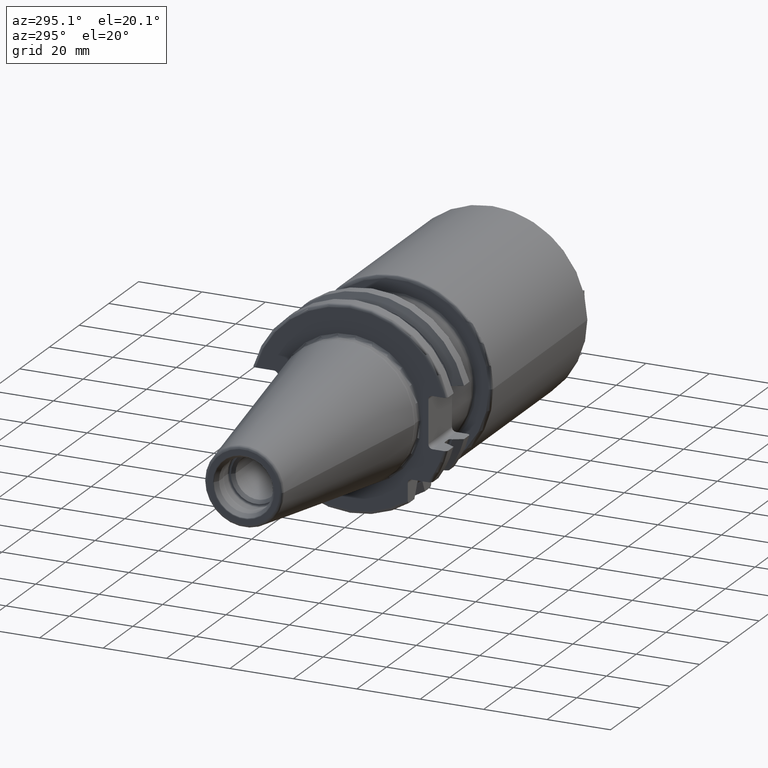
[diagram: clean part render]
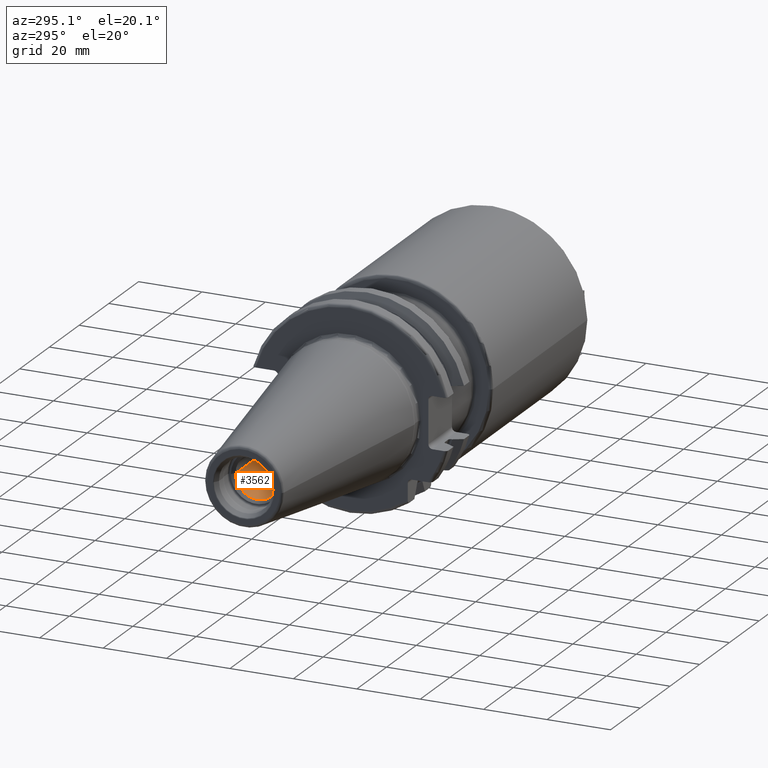
[diagram: same view with one face highlighted and labeled with its STEP entity id]
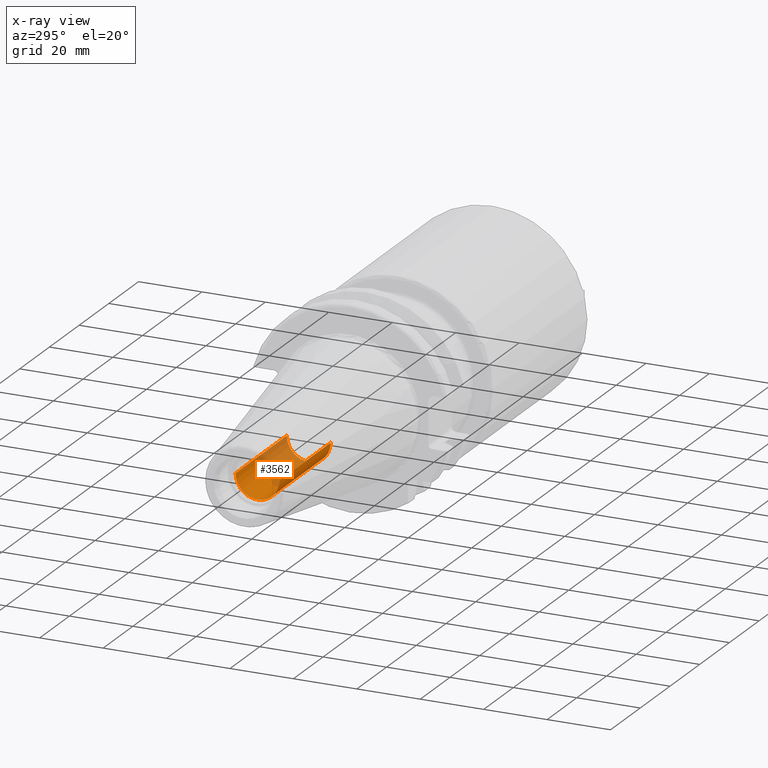
[diagram: x-ray of the same camera — body ghosted, the highlighted face saturated]
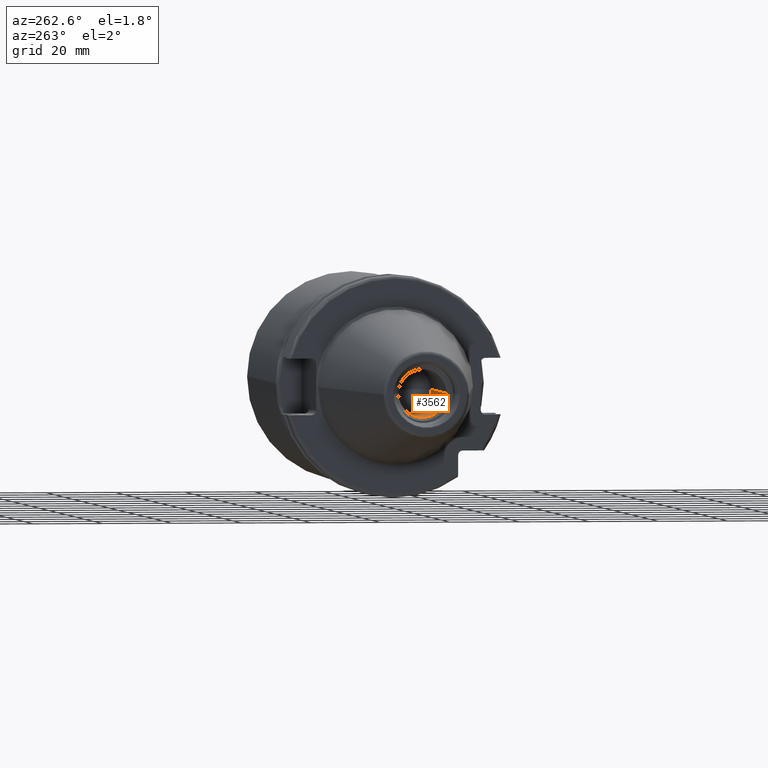
[diagram: same view with one face highlighted and labeled with its STEP entity id]
A machine part, auxiliary view. The second image highlights one B-rep face of the part: STEP entity #3562.
The next image is the same camera in x-ray: the body ghosted, the highlighted face saturated — about 42% of this face is hidden behind the body in this view.
A second angle (auxiliary view) of the same face is appended — the face is thin or edge-on in the first view.
In plain terms, the highlighted cylindrical surface (edge-blend (fillet) strip) has radius 6.92 mm, axis along (1, 0, 0).
Its self-contained STEP definition (entity closure, byte-faithful):
#1485=CARTESIAN_POINT('',(-5.88E1,0.E0,0.E0));
#1486=DIRECTION('',(-1.E0,0.E0,0.E0));
#1487=DIRECTION('',(0.E0,1.E0,0.E0));
#1488=AXIS2_PLACEMENT_3D('',#1485,#1486,#1487);
#1494=DIRECTION('',(-1.E0,0.E0,0.E0));
#1495=VECTOR('',#1494,3.455E1);
#1496=CARTESIAN_POINT('',(-2.425E1,6.92E0,0.E0));
#1497=LINE('',#1496,#1495);
#1498=CARTESIAN_POINT('',(-2.425E1,0.E0,0.E0));
#1499=DIRECTION('',(-1.E0,0.E0,0.E0));
#1500=DIRECTION('',(0.E0,1.E0,0.E0));
#1501=AXIS2_PLACEMENT_3D('',#1498,#1499,#1500);
#1503=DIRECTION('',(-1.E0,0.E0,0.E0));
#1504=VECTOR('',#1503,3.455E1);
#1505=CARTESIAN_POINT('',(-2.425E1,-6.92E0,0.E0));
#1506=LINE('',#1505,#1504);
#1539=CARTESIAN_POINT('',(-2.425E1,6.92E0,0.E0));
#1541=VERTEX_POINT('',#1539);
#1542=CARTESIAN_POINT('',(-5.88E1,6.92E0,0.E0));
#1543=VERTEX_POINT('',#1542);
#1562=CARTESIAN_POINT('',(-2.425E1,-6.92E0,0.E0));
#1563=VERTEX_POINT('',#1562);
#1564=CARTESIAN_POINT('',(-5.88E1,-6.92E0,0.E0));
#1565=VERTEX_POINT('',#1564);
#3548=CARTESIAN_POINT('',(-7.065789777418E1,0.E0,0.E0));
#3549=DIRECTION('',(1.E0,0.E0,0.E0));
#3550=DIRECTION('',(0.E0,-1.E0,0.E0));
#3551=AXIS2_PLACEMENT_3D('',#3548,#3549,#3550);
#3552=CYLINDRICAL_SURFACE('',#3551,6.92E0);
#3554=ORIENTED_EDGE('',*,*,#3553,.F.);
#3556=ORIENTED_EDGE('',*,*,#3555,.T.);
#3558=ORIENTED_EDGE('',*,*,#3557,.T.);
#3559=ORIENTED_EDGE('',*,*,#3541,.F.);
#3560=EDGE_LOOP('',(#3554,#3556,#3558,#3559));
#3561=FACE_OUTER_BOUND('',#3560,.F.);
#3562=ADVANCED_FACE('',(#3561),#3552,.F.);
#1489=CIRCLE('',#1488,6.92E0);
#1502=CIRCLE('',#1501,6.92E0);
#3541=EDGE_CURVE('',#1543,#1565,#1489,.T.);
#3553=EDGE_CURVE('',#1541,#1543,#1497,.T.);
#3555=EDGE_CURVE('',#1541,#1563,#1502,.T.);
#3557=EDGE_CURVE('',#1563,#1565,#1506,.T.);